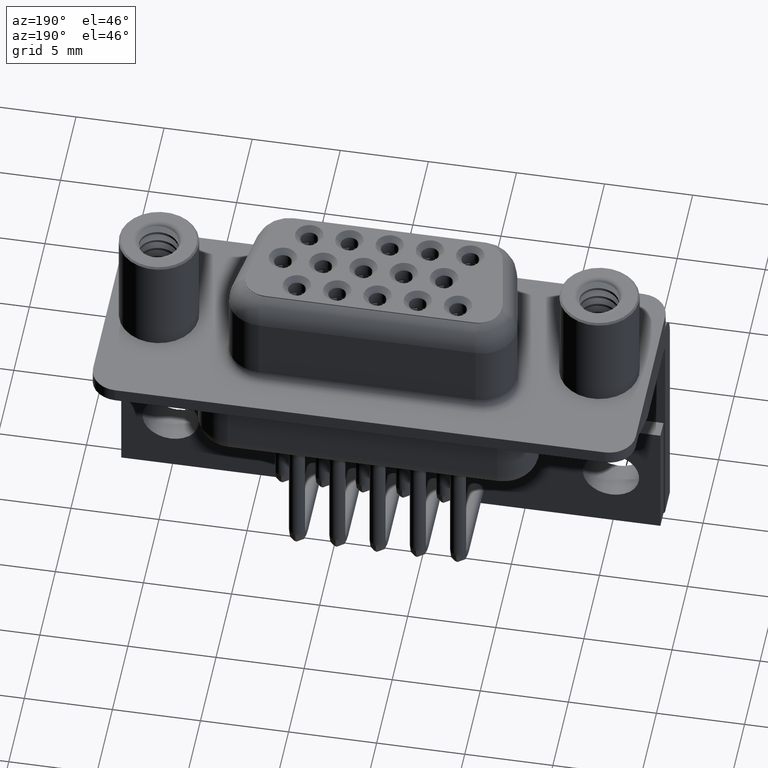
[diagram: clean part render]
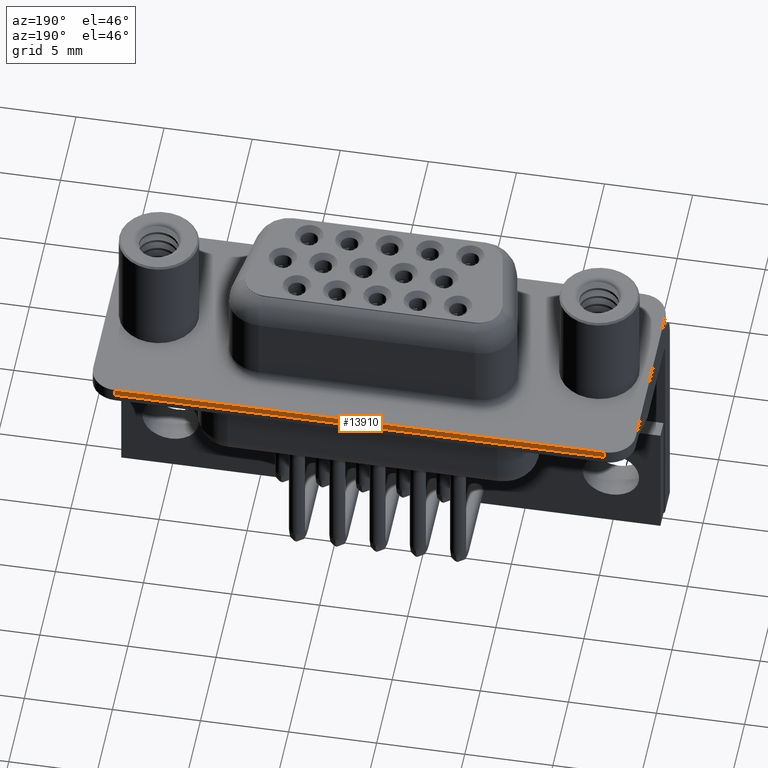
[diagram: same view with one face highlighted and labeled with its STEP entity id]
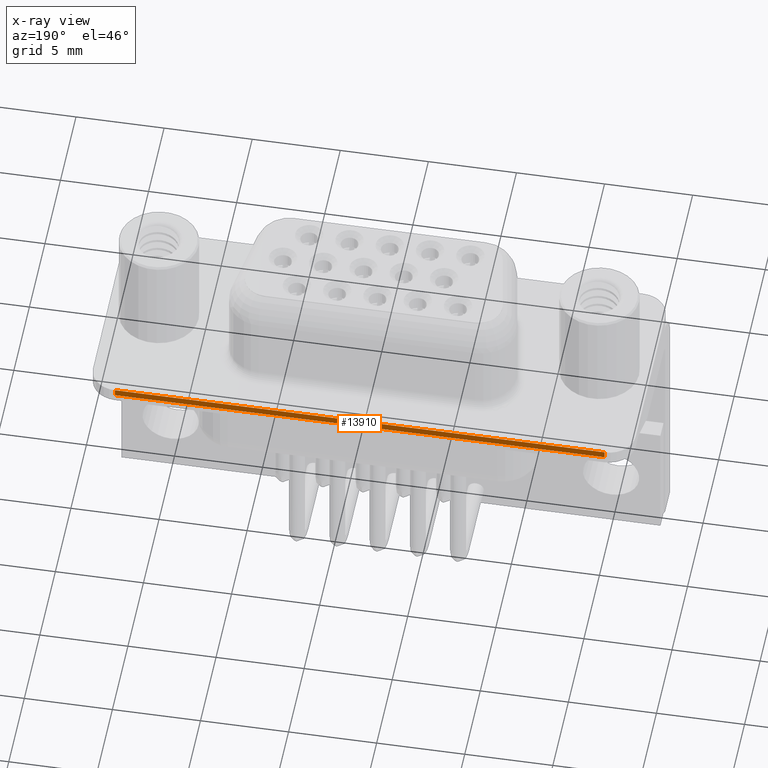
[diagram: x-ray of the same camera — body ghosted, the highlighted face saturated]
A machine part, auxiliary view. The second image highlights one B-rep face of the part: STEP entity #13910.
The next image is the same camera in x-ray: the body ghosted, the highlighted face saturated — about 0% of this face is hidden behind the body in this view.
In plain terms, the highlighted planar face has unit normal (0, -1, 0).
Its self-contained STEP definition (entity closure, byte-faithful):
#383 = EDGE_CURVE ( 'NONE', #9309, #19498, #17519, .T. ) ;
#548 = VERTEX_POINT ( 'NONE', #8315 ) ;
#679 = CARTESIAN_POINT ( 'NONE',  ( -1.400000000000012600, 6.249999999999997300, 0.4000000000000000200 ) ) ;
#1363 = ORIENTED_EDGE ( 'NONE', *, *, #11117, .T. ) ;
#2414 = DIRECTION ( 'NONE',  ( -1.000000000000000000, -9.360018755270537300E-017, 0.0000000000000000000 ) ) ;
#2661 = VECTOR ( 'NONE', #11578, 1000.000000000000000 ) ;
#3410 = EDGE_CURVE ( 'NONE', #21872, #19498, #7337, .T. ) ;
#3662 = CARTESIAN_POINT ( 'NONE',  ( -1.400000000000012600, 6.249999999999997300, 0.4000000000000000200 ) ) ;
#3720 = CARTESIAN_POINT ( 'NONE',  ( 26.39999999999999900, 6.250000000000002700, 0.0000000000000000000 ) ) ;
#3994 = VECTOR ( 'NONE', #18682, 1000.000000000000000 ) ;
#4396 = DIRECTION ( 'NONE',  ( 9.360018755270537300E-017, -1.000000000000000000, 0.0000000000000000000 ) ) ;
#5899 = DIRECTION ( 'NONE',  ( -0.0000000000000000000, -0.0000000000000000000, -1.000000000000000000 ) ) ;
#7337 = LINE ( 'NONE', #679, #2661 ) ;
#7771 = LINE ( 'NONE', #12992, #20750 ) ;
#8315 = CARTESIAN_POINT ( 'NONE',  ( 26.39999999999999900, 6.250000000000002700, 0.4000000000000000200 ) ) ;
#8876 = EDGE_CURVE ( 'NONE', #548, #21872, #7771, .T. ) ;
#9034 = ORIENTED_EDGE ( 'NONE', *, *, #3410, .F. ) ;
#9309 = VERTEX_POINT ( 'NONE', #3720 ) ;
#11117 = EDGE_CURVE ( 'NONE', #548, #9309, #15024, .T. ) ;
#11181 = AXIS2_PLACEMENT_3D ( 'NONE', #14970, #4396, #16745 ) ;
#11208 = CARTESIAN_POINT ( 'NONE',  ( 26.39999999999999900, 6.250000000000002700, 0.4000000000000000200 ) ) ;
#11411 = PLANE ( 'NONE',  #11181 ) ;
#11578 = DIRECTION ( 'NONE',  ( -0.0000000000000000000, -0.0000000000000000000, -1.000000000000000000 ) ) ;
#12992 = CARTESIAN_POINT ( 'NONE',  ( 26.39999999999999900, 6.250000000000002700, 0.4000000000000000200 ) ) ;
#13198 = EDGE_LOOP ( 'NONE', ( #16939, #9034, #14089, #1363 ) ) ;
#13910 = ADVANCED_FACE ( 'NONE', ( #19660 ), #11411, .F. ) ;
#14089 = ORIENTED_EDGE ( 'NONE', *, *, #8876, .F. ) ;
#14970 = CARTESIAN_POINT ( 'NONE',  ( 26.39999999999999900, 6.250000000000002700, 0.4000000000000000200 ) ) ;
#15024 = LINE ( 'NONE', #11208, #19138 ) ;
#15708 = CARTESIAN_POINT ( 'NONE',  ( -1.400000000000012600, 6.249999999999997300, 0.0000000000000000000 ) ) ;
#16745 = DIRECTION ( 'NONE',  ( 1.000000000000000000, 9.360018755270537300E-017, 0.0000000000000000000 ) ) ;
#16939 = ORIENTED_EDGE ( 'NONE', *, *, #383, .T. ) ;
#17519 = LINE ( 'NONE', #18702, #3994 ) ;
#18682 = DIRECTION ( 'NONE',  ( -1.000000000000000000, -9.360018755270537300E-017, 0.0000000000000000000 ) ) ;
#18702 = CARTESIAN_POINT ( 'NONE',  ( 26.39999999999999900, 6.250000000000002700, 0.0000000000000000000 ) ) ;
#19138 = VECTOR ( 'NONE', #5899, 1000.000000000000000 ) ;
#19498 = VERTEX_POINT ( 'NONE', #15708 ) ;
#19660 = FACE_OUTER_BOUND ( 'NONE', #13198, .T. ) ;
#20750 = VECTOR ( 'NONE', #2414, 1000.000000000000000 ) ;
#21872 = VERTEX_POINT ( 'NONE', #3662 ) ;